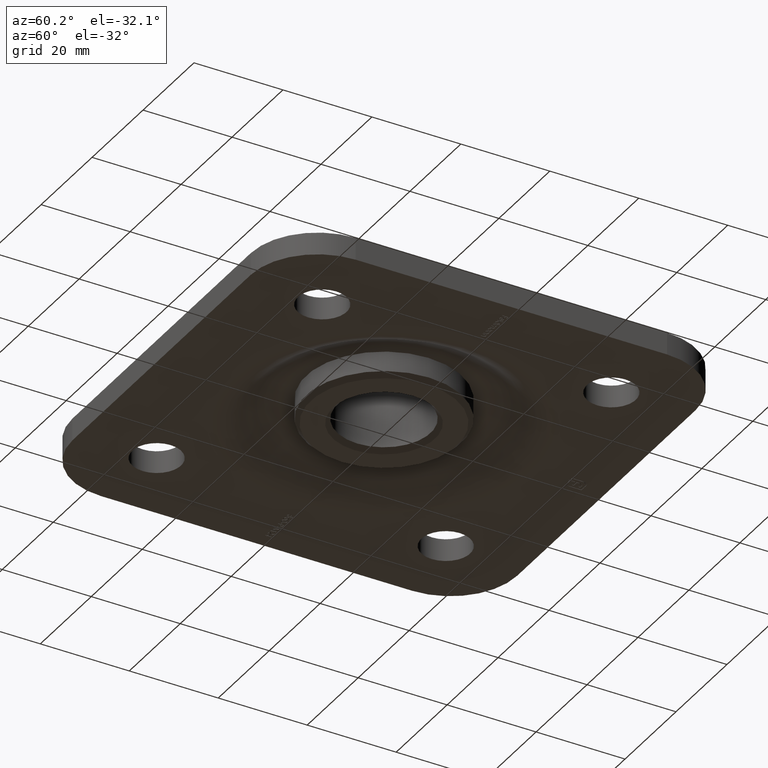
[diagram: clean part render]
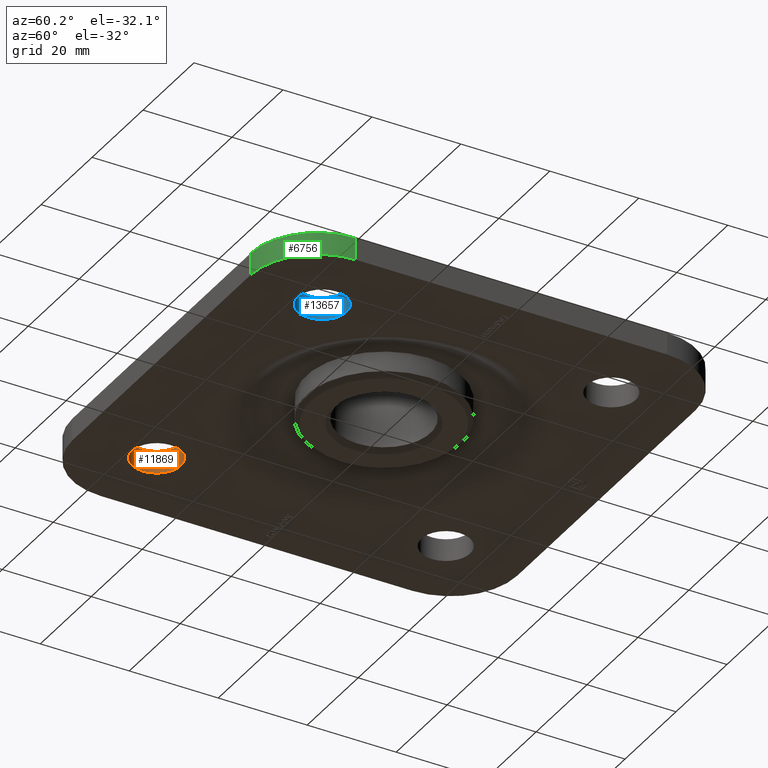
[diagram: same view with three faces highlighted in distinct colors, each labeled with its STEP entity id]
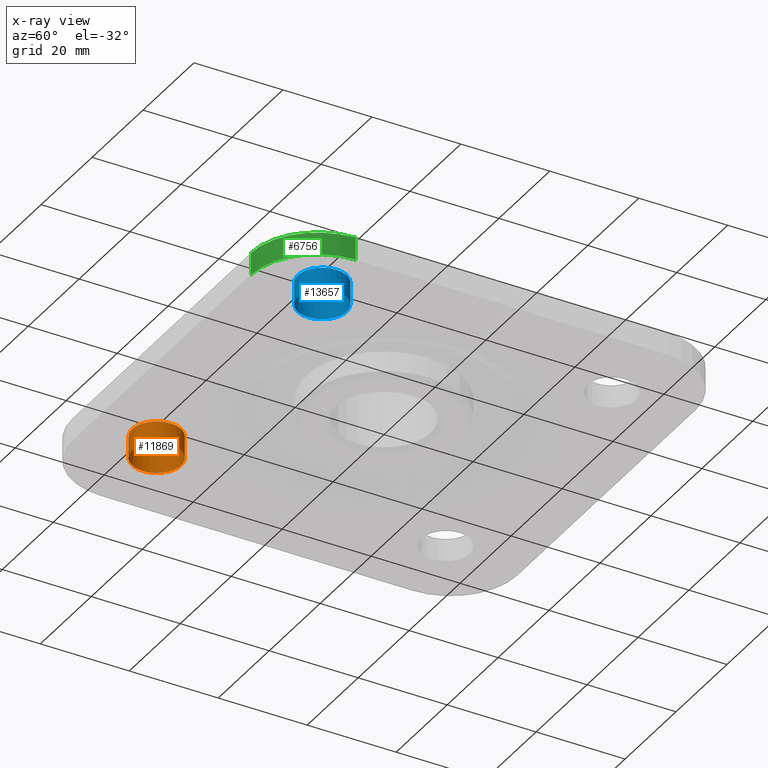
[diagram: x-ray of the same camera — body ghosted, the three highlighted faces saturated]
A machine part, auxiliary view with three faces highlighted in distinct colors.
The next image is the same camera in x-ray (body ghosted, the three faces saturated) — at least one of them is partly hidden behind the body in this view.
Their STEP definitions:

[orange] entity #11869 — the highlighted cylindrical surface (bore or boss wall) has radius 5.5 mm, axis along (-0, -0, 1).
#1090 = ORIENTED_EDGE ( 'NONE', *, *, #14986, .T. ) ;
#1408 = VERTEX_POINT ( 'NONE', #13884 ) ;
#1903 = EDGE_LOOP ( 'NONE', ( #1090 ) ) ;
#1981 = DIRECTION ( 'NONE',  ( 1.000000000000000000, 0.000000000000000000, 0.000000000000000000 ) ) ;
#2147 = CARTESIAN_POINT ( 'NONE',  ( -27.00000000000001066, -32.50000000000000711, 5.000000000000000888 ) ) ;
#3049 = FACE_OUTER_BOUND ( 'NONE', #1903, .T. ) ;
#4444 = ORIENTED_EDGE ( 'NONE', *, *, #9272, .F. ) ;
#5120 = CIRCLE ( 'NONE', #13801, 5.499999999999998224 ) ;
#6533 = CARTESIAN_POINT ( 'NONE',  ( -32.50000000000000711, -32.50000000000000711, 5.000000000000000888 ) ) ;
#6995 = AXIS2_PLACEMENT_3D ( 'NONE', #12292, #14624, #11002 ) ;
#8443 = CYLINDRICAL_SURFACE ( 'NONE', #6995, 5.499999999999998224 ) ;
#8924 = EDGE_LOOP ( 'NONE', ( #4444 ) ) ;
#8984 = VERTEX_POINT ( 'NONE', #2147 ) ;
#9272 = EDGE_CURVE ( 'NONE', #1408, #1408, #5120, .T. ) ;
#10095 = CARTESIAN_POINT ( 'NONE',  ( -32.50000000000000711, -32.50000000000000711, 0.000000000000000000 ) ) ;
#10193 = DIRECTION ( 'NONE',  ( 1.000000000000000000, 0.000000000000000000, 0.000000000000000000 ) ) ;
#10556 = AXIS2_PLACEMENT_3D ( 'NONE', #6533, #11310, #10193 ) ;
#11002 = DIRECTION ( 'NONE',  ( 1.000000000000000000, 0.000000000000000000, 0.000000000000000000 ) ) ;
#11176 = FACE_OUTER_BOUND ( 'NONE', #8924, .T. ) ;
#11310 = DIRECTION ( 'NONE',  ( 0.000000000000000000, 0.000000000000000000, 1.000000000000000000 ) ) ;
#11378 = CIRCLE ( 'NONE', #10556, 5.499999999999998224 ) ;
#11869 = ADVANCED_FACE ( 'NONE', ( #11176, #3049 ), #8443, .F. ) ;
#12292 = CARTESIAN_POINT ( 'NONE',  ( -32.50000000000000711, -32.50000000000000711, 0.000000000000000000 ) ) ;
#12467 = DIRECTION ( 'NONE',  ( 0.000000000000000000, 0.000000000000000000, 1.000000000000000000 ) ) ;
#13801 = AXIS2_PLACEMENT_3D ( 'NONE', #10095, #12467, #1981 ) ;
#13884 = CARTESIAN_POINT ( 'NONE',  ( -27.00000000000001066, -32.50000000000000711, 0.000000000000000000 ) ) ;
#14624 = DIRECTION ( 'NONE',  ( -0.000000000000000000, -0.000000000000000000, 1.000000000000000000 ) ) ;
#14986 = EDGE_CURVE ( 'NONE', #8984, #8984, #11378, .T. ) ;

[blue] entity #13657 — the highlighted cylindrical surface (bore or boss wall) has radius 5.5 mm, axis along (-0, -0, 1).
#105 = CIRCLE ( 'NONE', #4406, 5.499999999999998224 ) ;
#244 = EDGE_CURVE ( 'NONE', #5279, #5279, #9213, .T. ) ;
#1042 = VERTEX_POINT ( 'NONE', #9084 ) ;
#1077 = CYLINDRICAL_SURFACE ( 'NONE', #5005, 5.499999999999998224 ) ;
#1356 = EDGE_LOOP ( 'NONE', ( #9368 ) ) ;
#1391 = DIRECTION ( 'NONE',  ( 0.000000000000000000, 0.000000000000000000, 1.000000000000000000 ) ) ;
#3756 = DIRECTION ( 'NONE',  ( 1.000000000000000000, 0.000000000000000000, 0.000000000000000000 ) ) ;
#4197 = FACE_OUTER_BOUND ( 'NONE', #1356, .T. ) ;
#4406 = AXIS2_PLACEMENT_3D ( 'NONE', #7276, #1391, #3756 ) ;
#5005 = AXIS2_PLACEMENT_3D ( 'NONE', #14576, #10033, #11157 ) ;
#5279 = VERTEX_POINT ( 'NONE', #6697 ) ;
#6697 = CARTESIAN_POINT ( 'NONE',  ( 37.99999999999999289, -32.49999999999999289, 5.000000000000000888 ) ) ;
#7028 = DIRECTION ( 'NONE',  ( 0.000000000000000000, 0.000000000000000000, 1.000000000000000000 ) ) ;
#7154 = AXIS2_PLACEMENT_3D ( 'NONE', #14006, #7028, #9505 ) ;
#7276 = CARTESIAN_POINT ( 'NONE',  ( 32.49999999999999289, -32.49999999999999289, 0.000000000000000000 ) ) ;
#9084 = CARTESIAN_POINT ( 'NONE',  ( 37.99999999999999289, -32.49999999999999289, 0.000000000000000000 ) ) ;
#9213 = CIRCLE ( 'NONE', #7154, 5.499999999999998224 ) ;
#9368 = ORIENTED_EDGE ( 'NONE', *, *, #11271, .F. ) ;
#9471 = EDGE_LOOP ( 'NONE', ( #9635 ) ) ;
#9505 = DIRECTION ( 'NONE',  ( 1.000000000000000000, 0.000000000000000000, 0.000000000000000000 ) ) ;
#9635 = ORIENTED_EDGE ( 'NONE', *, *, #244, .T. ) ;
#9939 = FACE_OUTER_BOUND ( 'NONE', #9471, .T. ) ;
#10033 = DIRECTION ( 'NONE',  ( -0.000000000000000000, -0.000000000000000000, 1.000000000000000000 ) ) ;
#11157 = DIRECTION ( 'NONE',  ( 1.000000000000000000, 0.000000000000000000, 0.000000000000000000 ) ) ;
#11271 = EDGE_CURVE ( 'NONE', #1042, #1042, #105, .T. ) ;
#13657 = ADVANCED_FACE ( 'NONE', ( #4197, #9939 ), #1077, .F. ) ;
#14006 = CARTESIAN_POINT ( 'NONE',  ( 32.49999999999999289, -32.49999999999999289, 5.000000000000000888 ) ) ;
#14576 = CARTESIAN_POINT ( 'NONE',  ( 32.49999999999999289, -32.49999999999999289, 0.000000000000000000 ) ) ;

[green] entity #6756 — the highlighted cylindrical surface (partial cylindrical patch) has radius 15 mm, axis along (0, 0, -1).
#528 = AXIS2_PLACEMENT_3D ( 'NONE', #8634, #14373, #1502 ) ;
#622 = VERTEX_POINT ( 'NONE', #12532 ) ;
#1144 = VERTEX_POINT ( 'NONE', #10337 ) ;
#1502 = DIRECTION ( 'NONE',  ( 1.000000000000000000, 0.000000000000000000, 0.000000000000000000 ) ) ;
#1767 = VERTEX_POINT ( 'NONE', #13603 ) ;
#3472 = CARTESIAN_POINT ( 'NONE',  ( 35.00000000000000000, -35.00000000000000000, 5.000000000000004441 ) ) ;
#3486 = CARTESIAN_POINT ( 'NONE',  ( 35.00000000000000000, -50.00000000000000000, 75.71067811865478347 ) ) ;
#3892 = ORIENTED_EDGE ( 'NONE', *, *, #5922, .F. ) ;
#4368 = VECTOR ( 'NONE', #14229, 1000.000000000000000 ) ;
#4641 = VECTOR ( 'NONE', #9295, 1000.000000000000000 ) ;
#4791 = CIRCLE ( 'NONE', #11795, 15.00000000000000000 ) ;
#5922 = EDGE_CURVE ( 'NONE', #1767, #622, #8896, .T. ) ;
#5924 = FACE_OUTER_BOUND ( 'NONE', #12016, .T. ) ;
#5957 = CARTESIAN_POINT ( 'NONE',  ( 35.00000000000000000, -35.00000000000000000, 75.71067811865478347 ) ) ;
#6297 = ORIENTED_EDGE ( 'NONE', *, *, #9692, .F. ) ;
#6756 = ADVANCED_FACE ( 'NONE', ( #5924 ), #7229, .T. ) ;
#7229 = CYLINDRICAL_SURFACE ( 'NONE', #8641, 15.00000000000000000 ) ;
#7533 = EDGE_CURVE ( 'NONE', #1144, #1767, #4791, .T. ) ;
#8074 = LINE ( 'NONE', #3486, #4368 ) ;
#8277 = DIRECTION ( 'NONE',  ( -1.000000000000000000, 0.000000000000000000, 0.000000000000000000 ) ) ;
#8634 = CARTESIAN_POINT ( 'NONE',  ( 35.00000000000000000, -35.00000000000000000, 0.000000000000000000 ) ) ;
#8641 = AXIS2_PLACEMENT_3D ( 'NONE', #5957, #10642, #8277 ) ;
#8896 = LINE ( 'NONE', #9100, #4641 ) ;
#9100 = CARTESIAN_POINT ( 'NONE',  ( 50.00000000000000000, -35.00000000000000000, 75.71067811865478347 ) ) ;
#9295 = DIRECTION ( 'NONE',  ( 0.000000000000000000, 0.000000000000000000, -1.000000000000000000 ) ) ;
#9663 = VERTEX_POINT ( 'NONE', #12033 ) ;
#9692 = EDGE_CURVE ( 'NONE', #622, #9663, #9930, .T. ) ;
#9930 = CIRCLE ( 'NONE', #528, 15.00000000000000000 ) ;
#10337 = CARTESIAN_POINT ( 'NONE',  ( 35.00000000000000000, -50.00000000000000000, 5.000000000000004441 ) ) ;
#10594 = DIRECTION ( 'NONE',  ( -0.000000000000000000, -0.000000000000000000, 1.000000000000000000 ) ) ;
#10606 = EDGE_CURVE ( 'NONE', #9663, #1144, #8074, .T. ) ;
#10642 = DIRECTION ( 'NONE',  ( 0.000000000000000000, 0.000000000000000000, -1.000000000000000000 ) ) ;
#10925 = ORIENTED_EDGE ( 'NONE', *, *, #10606, .F. ) ;
#11717 = DIRECTION ( 'NONE',  ( -1.000000000000000000, 0.000000000000000000, 0.000000000000000000 ) ) ;
#11795 = AXIS2_PLACEMENT_3D ( 'NONE', #3472, #10594, #11717 ) ;
#12016 = EDGE_LOOP ( 'NONE', ( #14721, #10925, #6297, #3892 ) ) ;
#12033 = CARTESIAN_POINT ( 'NONE',  ( 35.00000000000000000, -50.00000000000000000, -0.000000000000000000 ) ) ;
#12532 = CARTESIAN_POINT ( 'NONE',  ( 50.00000000000000000, -35.00000000000000000, 0.000000000000000000 ) ) ;
#13603 = CARTESIAN_POINT ( 'NONE',  ( 50.00000000000000000, -35.00000000000000000, 5.000000000000004441 ) ) ;
#14229 = DIRECTION ( 'NONE',  ( -0.000000000000000000, -0.000000000000000000, 1.000000000000000000 ) ) ;
#14373 = DIRECTION ( 'NONE',  ( 0.000000000000000000, 0.000000000000000000, -1.000000000000000000 ) ) ;
#14721 = ORIENTED_EDGE ( 'NONE', *, *, #7533, .F. ) ;